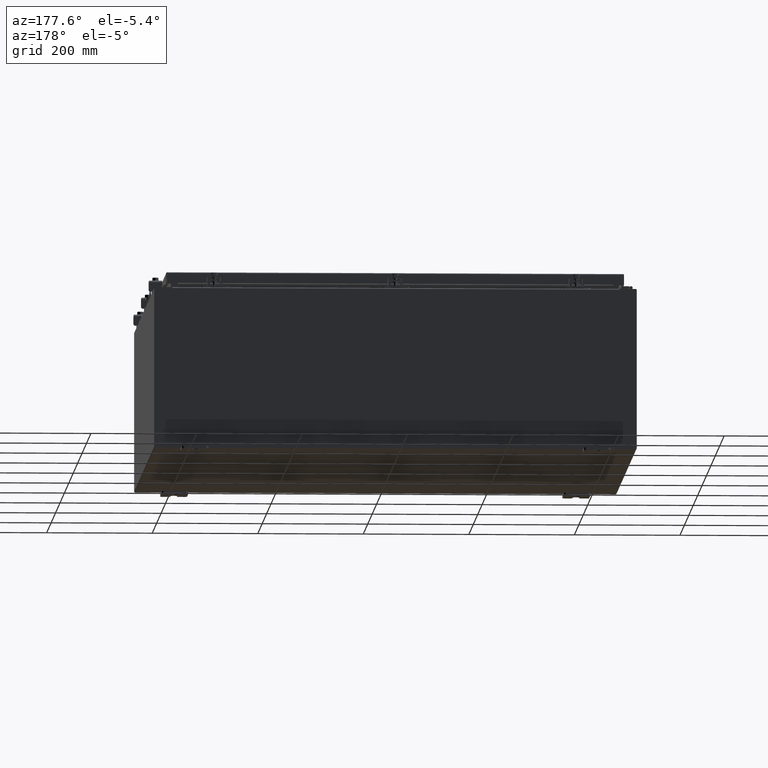
[diagram: clean part render]
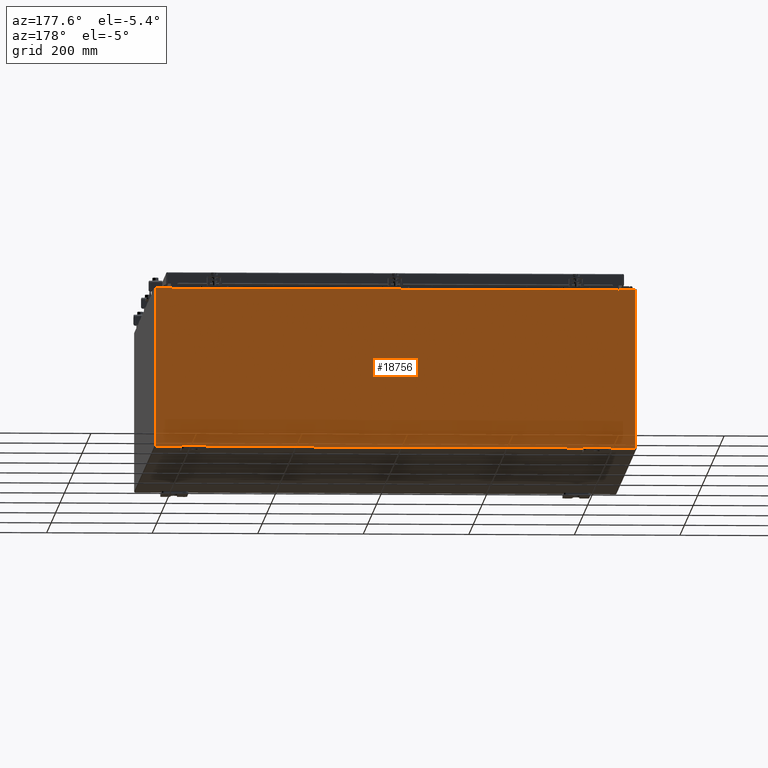
[diagram: same view with one face highlighted and labeled with its STEP entity id]
A machine part, auxiliary view. The second image highlights one B-rep face of the part: STEP entity #18756.
In plain terms, the highlighted planar face has unit normal (0, -1, 0).
Its self-contained STEP definition (entity closure, byte-faithful):
#627 = ORIENTED_EDGE ( 'NONE', *, *, #22753, .T. ) ;
#980 = CARTESIAN_POINT ( 'NONE',  ( -16.63720000000000000, 0.0000000000000000000, 5.912299999999999200 ) ) ;
#1183 = ORIENTED_EDGE ( 'NONE', *, *, #44100, .T. ) ;
#1366 = EDGE_CURVE ( 'NONE', #24104, #12767, #28912, .T. ) ;
#1373 = DIRECTION ( 'NONE',  ( 0.0000000000000000000, 0.0000000000000000000, -1.000000000000000000 ) ) ;
#1781 = EDGE_CURVE ( 'NONE', #14770, #40850, #24894, .T. ) ;
#1788 = VERTEX_POINT ( 'NONE', #26841 ) ;
#1816 = ORIENTED_EDGE ( 'NONE', *, *, #10661, .T. ) ;
#2473 = EDGE_LOOP ( 'NONE', ( #30540, #35373, #30345, #627, #46456, #28755, #32333, #9931, #17369, #1816, #27992, #1183 ) ) ;
#2766 = VECTOR ( 'NONE', #21669, 39.37007874015748100 ) ;
#2879 = DIRECTION ( 'NONE',  ( 0.0000000000000000000, 0.0000000000000000000, 1.000000000000000000 ) ) ;
#3621 = EDGE_CURVE ( 'NONE', #14770, #37237, #7474, .T. ) ;
#4828 = DIRECTION ( 'NONE',  ( 0.0000000000000000000, -1.000000000000000000, 0.0000000000000000000 ) ) ;
#5139 = FACE_OUTER_BOUND ( 'NONE', #2473, .T. ) ;
#5564 = LINE ( 'NONE', #20701, #23455 ) ;
#6251 = VERTEX_POINT ( 'NONE', #20240 ) ;
#6318 = EDGE_CURVE ( 'NONE', #1788, #15063, #5564, .T. ) ;
#6352 = VECTOR ( 'NONE', #19836, 39.37007874015748100 ) ;
#6595 = CARTESIAN_POINT ( 'NONE',  ( 17.92530000000000400, 0.0000000000000000000, 5.925300000000001800 ) ) ;
#6655 = CARTESIAN_POINT ( 'NONE',  ( -17.92529999999999600, 0.0000000000000000000, 5.925299999999999100 ) ) ;
#7344 = CARTESIAN_POINT ( 'NONE',  ( -17.92529999999999600, 0.0000000000000000000, 5.925299999999999100 ) ) ;
#7474 = LINE ( 'NONE', #37888, #6352 ) ;
#9588 = CARTESIAN_POINT ( 'NONE',  ( 16.67455000000000400, 0.0000000000000000000, 5.874950000000000100 ) ) ;
#9885 = LINE ( 'NONE', #7344, #28953 ) ;
#9931 = ORIENTED_EDGE ( 'NONE', *, *, #1781, .T. ) ;
#10190 = AXIS2_PLACEMENT_3D ( 'NONE', #19065, #4828, #29888 ) ;
#10609 = DIRECTION ( 'NONE',  ( 1.000000000000000000, 0.0000000000000000000, 0.0000000000000000000 ) ) ;
#10617 = DIRECTION ( 'NONE',  ( -0.0000000000000000000, 1.000000000000000000, -0.0000000000000000000 ) ) ;
#10661 = EDGE_CURVE ( 'NONE', #16792, #28806, #21364, .T. ) ;
#10932 = DIRECTION ( 'NONE',  ( -0.0000000000000000000, -0.0000000000000000000, 1.000000000000000000 ) ) ;
#11205 = VECTOR ( 'NONE', #42393, 39.37007874015748100 ) ;
#11855 = VECTOR ( 'NONE', #43679, 39.37007874015748100 ) ;
#12402 = DIRECTION ( 'NONE',  ( 1.000000000000000000, 0.0000000000000000000, 3.048036009064577000E-017 ) ) ;
#12767 = VERTEX_POINT ( 'NONE', #26828 ) ;
#13181 = LINE ( 'NONE', #6595, #40666 ) ;
#13236 = CARTESIAN_POINT ( 'NONE',  ( -16.63720000000000000, 0.0000000000000000000, 0.0000000000000000000 ) ) ;
#13733 = CARTESIAN_POINT ( 'NONE',  ( 16.63720000000000400, 0.0000000000000000000, 0.0000000000000000000 ) ) ;
#14627 = CARTESIAN_POINT ( 'NONE',  ( -17.92529999999999600, 0.0000000000000000000, 5.925299999999999100 ) ) ;
#14770 = VERTEX_POINT ( 'NONE', #17458 ) ;
#15063 = VERTEX_POINT ( 'NONE', #19036 ) ;
#16792 = VERTEX_POINT ( 'NONE', #40014 ) ;
#17369 = ORIENTED_EDGE ( 'NONE', *, *, #31629, .T. ) ;
#17458 = CARTESIAN_POINT ( 'NONE',  ( 16.67455000000000700, 0.0000000000000000000, 5.925300000000001800 ) ) ;
#18756 = ADVANCED_FACE ( 'NONE', ( #5139 ), #26273, .F. ) ;
#19036 = CARTESIAN_POINT ( 'NONE',  ( -16.67455000000000000, 0.0000000000000000000, 5.925299999999999100 ) ) ;
#19065 = CARTESIAN_POINT ( 'NONE',  ( 0.0000000000000000000, 0.0000000000000000000, 0.0000000000000000000 ) ) ;
#19358 = VECTOR ( 'NONE', #38337, 39.37007874015748100 ) ;
#19836 = DIRECTION ( 'NONE',  ( -8.681145560799821800E-014, 0.0000000000000000000, -1.000000000000000000 ) ) ;
#19953 = VECTOR ( 'NONE', #10609, 39.37007874015748100 ) ;
#20240 = CARTESIAN_POINT ( 'NONE',  ( 16.63720000000000400, 0.0000000000000000000, 5.874950000000000100 ) ) ;
#20666 = LINE ( 'NONE', #14627, #2766 ) ;
#20701 = CARTESIAN_POINT ( 'NONE',  ( -16.67455000000000000, 0.0000000000000000000, 0.0000000000000000000 ) ) ;
#21064 = LINE ( 'NONE', #980, #19953 ) ;
#21364 = LINE ( 'NONE', #22056, #11855 ) ;
#21669 = DIRECTION ( 'NONE',  ( 1.000000000000000000, 0.0000000000000000000, 3.048036009064577000E-017 ) ) ;
#21831 = LINE ( 'NONE', #13733, #11205 ) ;
#22056 = CARTESIAN_POINT ( 'NONE',  ( -17.92529999999999600, 0.0000000000000000000, -5.925300000000000000 ) ) ;
#22753 = EDGE_CURVE ( 'NONE', #24104, #29418, #21064, .T. ) ;
#22806 = DIRECTION ( 'NONE',  ( -0.0000000000000000000, 1.000000000000000000, -0.0000000000000000000 ) ) ;
#23455 = VECTOR ( 'NONE', #2879, 39.37007874015748100 ) ;
#24104 = VERTEX_POINT ( 'NONE', #36859 ) ;
#24516 = EDGE_CURVE ( 'NONE', #37237, #6251, #27678, .T. ) ;
#24894 = LINE ( 'NONE', #33742, #33355 ) ;
#25533 = CARTESIAN_POINT ( 'NONE',  ( 16.63720000000000400, 0.0000000000000000000, 5.912299999999999200 ) ) ;
#26273 = PLANE ( 'NONE',  #10190 ) ;
#26828 = CARTESIAN_POINT ( 'NONE',  ( -16.63720000000000000, 0.0000000000000000000, 5.874950000000000100 ) ) ;
#26841 = CARTESIAN_POINT ( 'NONE',  ( -16.67455000000000000, 0.0000000000000000000, 5.874950000000000100 ) ) ;
#27091 = EDGE_CURVE ( 'NONE', #12767, #1788, #29758, .T. ) ;
#27678 = CIRCLE ( 'NONE', #29886, 0.01867499999999949400 ) ;
#27992 = ORIENTED_EDGE ( 'NONE', *, *, #36274, .T. ) ;
#28755 = ORIENTED_EDGE ( 'NONE', *, *, #24516, .F. ) ;
#28806 = VERTEX_POINT ( 'NONE', #29392 ) ;
#28912 = LINE ( 'NONE', #13236, #19358 ) ;
#28953 = VECTOR ( 'NONE', #10932, 39.37007874015748100 ) ;
#29392 = CARTESIAN_POINT ( 'NONE',  ( -17.92529999999999600, 0.0000000000000000000, -5.925300000000000000 ) ) ;
#29418 = VERTEX_POINT ( 'NONE', #25533 ) ;
#29758 = CIRCLE ( 'NONE', #31684, 0.01867499999999949400 ) ;
#29886 = AXIS2_PLACEMENT_3D ( 'NONE', #32096, #10617, #35673 ) ;
#29888 = DIRECTION ( 'NONE',  ( 0.0000000000000000000, -0.0000000000000000000, -1.000000000000000000 ) ) ;
#30345 = ORIENTED_EDGE ( 'NONE', *, *, #1366, .F. ) ;
#30540 = ORIENTED_EDGE ( 'NONE', *, *, #6318, .F. ) ;
#31629 = EDGE_CURVE ( 'NONE', #40850, #16792, #13181, .T. ) ;
#31684 = AXIS2_PLACEMENT_3D ( 'NONE', #44267, #22806, #1373 ) ;
#32096 = CARTESIAN_POINT ( 'NONE',  ( 16.65587500000000500, 0.0000000000000000000, 5.874950000000000100 ) ) ;
#32333 = ORIENTED_EDGE ( 'NONE', *, *, #3621, .F. ) ;
#33355 = VECTOR ( 'NONE', #12402, 39.37007874015748100 ) ;
#33742 = CARTESIAN_POINT ( 'NONE',  ( -17.92529999999999600, 0.0000000000000000000, 5.925299999999999100 ) ) ;
#34068 = CARTESIAN_POINT ( 'NONE',  ( 17.92530000000000400, 0.0000000000000000000, 5.925300000000001800 ) ) ;
#35235 = DIRECTION ( 'NONE',  ( 0.0000000000000000000, 0.0000000000000000000, -1.000000000000000000 ) ) ;
#35373 = ORIENTED_EDGE ( 'NONE', *, *, #27091, .F. ) ;
#35673 = DIRECTION ( 'NONE',  ( 0.0000000000000000000, 0.0000000000000000000, -1.000000000000000000 ) ) ;
#36274 = EDGE_CURVE ( 'NONE', #28806, #38425, #9885, .T. ) ;
#36859 = CARTESIAN_POINT ( 'NONE',  ( -16.63720000000000000, 0.0000000000000000000, 5.912299999999999200 ) ) ;
#37237 = VERTEX_POINT ( 'NONE', #9588 ) ;
#37888 = CARTESIAN_POINT ( 'NONE',  ( 16.67454999999949500, 0.0000000000000000000, -1.447879436642059600E-012 ) ) ;
#38337 = DIRECTION ( 'NONE',  ( 0.0000000000000000000, 0.0000000000000000000, -1.000000000000000000 ) ) ;
#38425 = VERTEX_POINT ( 'NONE', #6655 ) ;
#40014 = CARTESIAN_POINT ( 'NONE',  ( 17.92530000000000400, 0.0000000000000000000, -5.925300000000000000 ) ) ;
#40666 = VECTOR ( 'NONE', #35235, 39.37007874015748100 ) ;
#40850 = VERTEX_POINT ( 'NONE', #34068 ) ;
#42393 = DIRECTION ( 'NONE',  ( 0.0000000000000000000, 0.0000000000000000000, 1.000000000000000000 ) ) ;
#43539 = EDGE_CURVE ( 'NONE', #6251, #29418, #21831, .T. ) ;
#43679 = DIRECTION ( 'NONE',  ( -1.000000000000000000, -0.0000000000000000000, -0.0000000000000000000 ) ) ;
#44100 = EDGE_CURVE ( 'NONE', #38425, #15063, #20666, .T. ) ;
#44267 = CARTESIAN_POINT ( 'NONE',  ( -16.65587499999999800, 0.0000000000000000000, 5.874950000000000100 ) ) ;
#46456 = ORIENTED_EDGE ( 'NONE', *, *, #43539, .F. ) ;